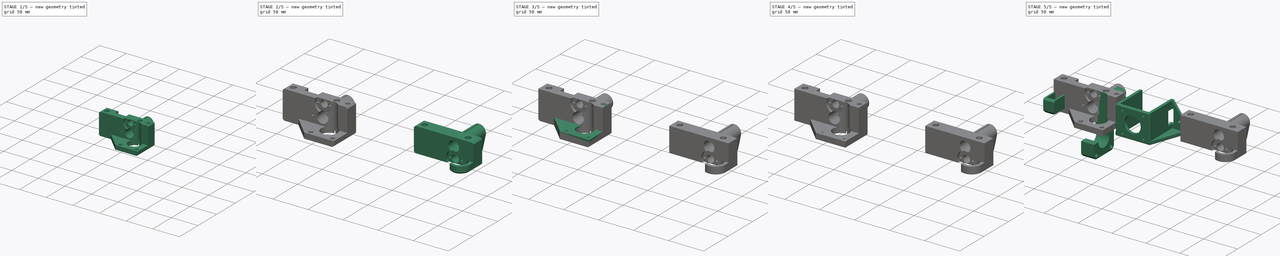
[diagram: build sequence overview — one tinted view per stage of 5, left to right]
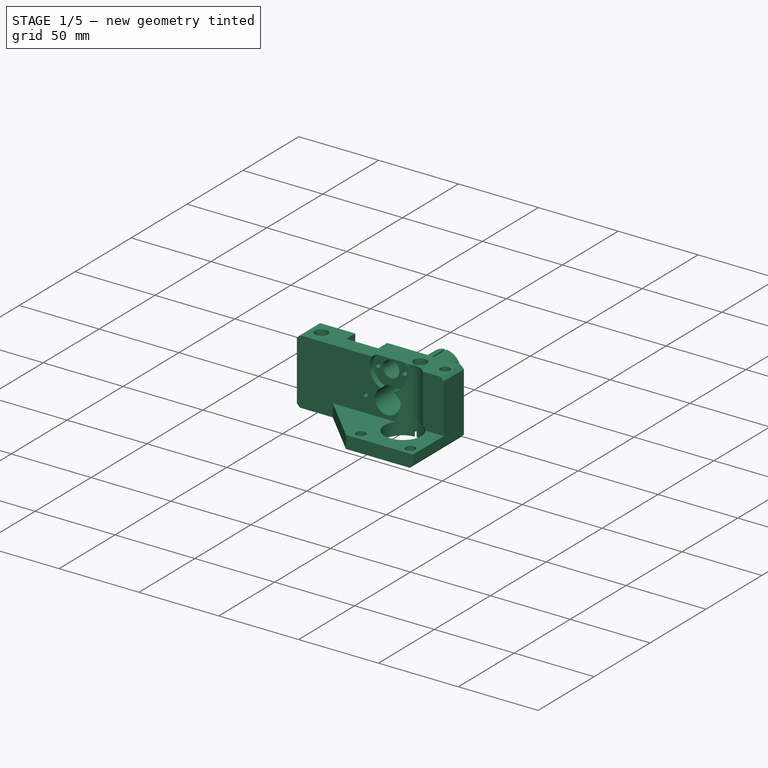
[diagram: stage 1 of 5 — iso view after this stage's code; geometry added in this stage tinted green]
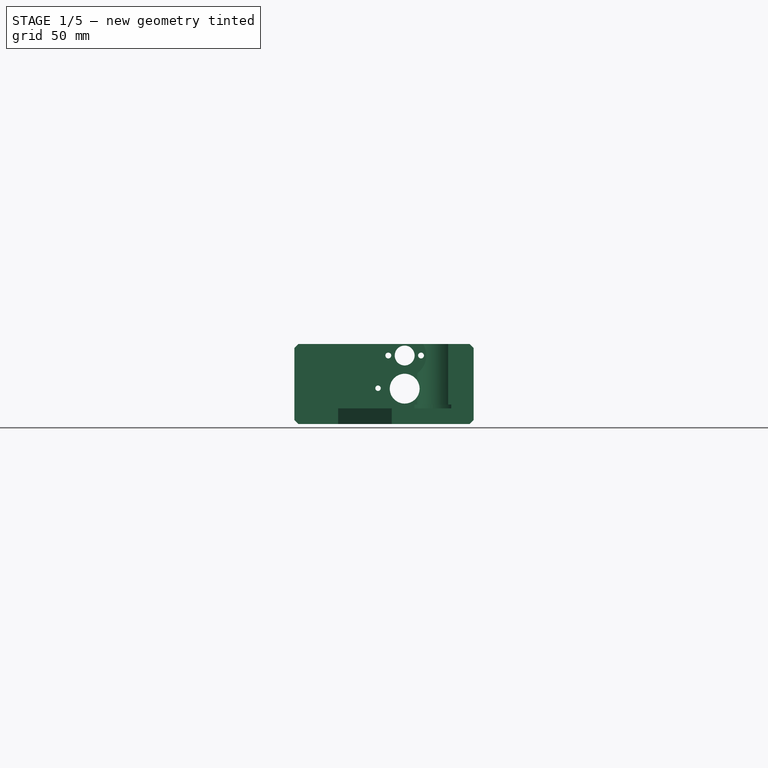
[diagram: stage 1 of 5 — front view after this stage's code; geometry added in this stage tinted green]
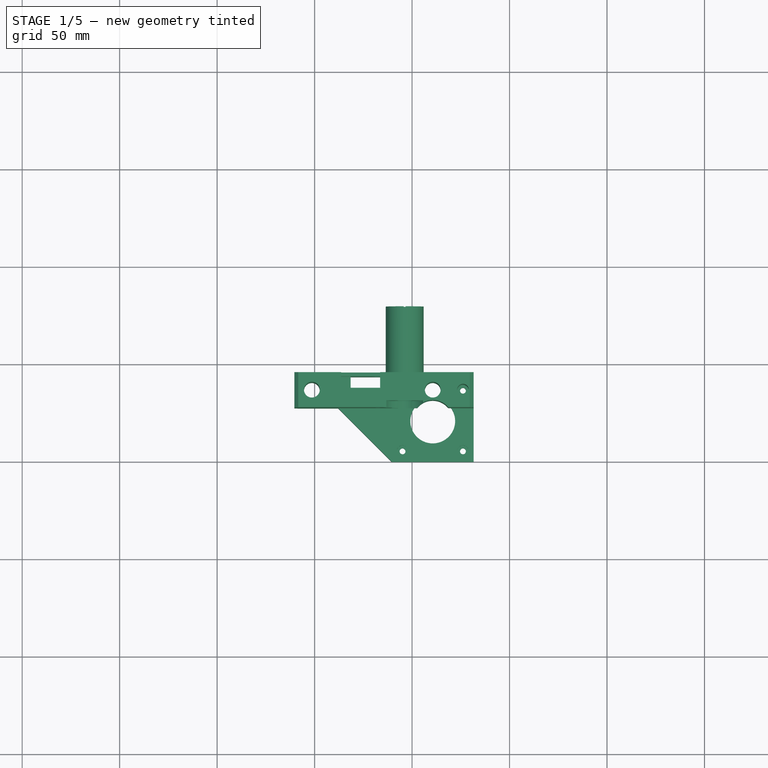
[diagram: stage 1 of 5 — top view after this stage's code; geometry added in this stage tinted green]
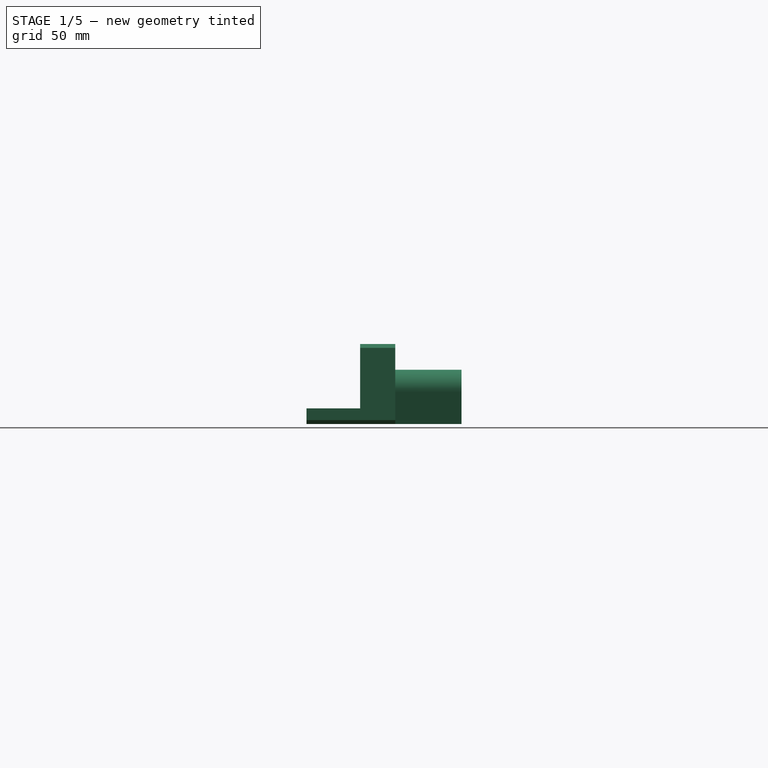
[diagram: stage 1 of 5 — right view after this stage's code; geometry added in this stage tinted green]
FCSTD DOCUMENT  (FreeCAD 0.16R6603 (Git))
Label: h-horizontal-husillos
License: All rights reserved
LicenseURL: http://en.wikipedia.org/wiki/All_rights_reserved
objects: Sketcher::SketchObject×17, PartDesign::Pocket×12, Part::Feature×10, PartDesign::Pad×5, PartDesign::Chamfer×4, Part::FeaturePython×4, Part::Extrusion×2, Part::MultiFuse×2, App::DocumentObjectGroup×2, PartDesign::Groove×1, Part::Cut×1
note: 76 computed .brp shape members not serialized (recipe doc carries the construction recipe); baked Part::Feature solids carry a one-line shape summary decoded from their .brp

FEATURE [Part::Feature] Pocket007001  label="Pocket008"
  shape: bbox 92 x 85.5 x 46 mm, 132 faces (baked)
FEATURE [App::DocumentObjectGroup] Grupo  label="Xmotor"
  Group = -> [Part__Feature002,Facebinder,Fusion,Pocket,Pocket001,Pad,Fusion001,Pocket004,Pocket005,Pocket006,Pocket007,Pocket007001]
FEATURE [PartDesign::Chamfer] Chamfer003
  Base = -> Pocket007001 [Edge70,Edge38,Edge76,Edge37]
  Size = 2
FEATURE [Sketcher::SketchObject] Sketch012
  Placement = pos=(-2.4e-11,85.5,0) rot=(0,0.707107,0.707107;3.14159rad)
  Support = -> Chamfer003 [Face6]
  sketch-geometry (4):
    g0: LineSegment StartX=20.5566 StartY=29.1063 StartZ=0 EndX=91.3385 EndY=29.1063 EndZ=0
    g1: LineSegment StartX=91.3385 StartY=29.1063 StartZ=0 EndX=91.3385 EndY=-15.0078 EndZ=0
    g2: LineSegment StartX=91.3385 StartY=-15.0078 StartZ=0 EndX=20.5566 EndY=-15.0078 EndZ=0
    g3: LineSegment StartX=20.5566 StartY=-15.0078 StartZ=0 EndX=20.5566 EndY=29.1063 EndZ=0
  constraints (8):
    c: Coincident(g0,g1)
    c: Coincident(g1,g2)
    c: Coincident(g2,g3)
    c: Coincident(g3,g0)
    c: Horizontal(g0)
    c: Horizontal(g2)
    c: Vertical(g1)
    c: Vertical(g3)
FEATURE [PartDesign::Pocket] Pocket007003
  Length = 6
  Sketch = -> Sketch012
  Type = 0
FEATURE [Sketcher::SketchObject] Sketch013
  ExternalGeometry = -> [Pocket007003]
  Placement = pos=(-2.2e-11,79.5,0) rot=(0,0.707107,0.707107;3.14159rad)
  Support = -> Pocket007003 [Face4]
  sketch-geometry (8):
    g0: ArcOfCircle CenterX=53.7989 CenterY=12.108 CenterZ=0 NormalX=0 NormalY=0 NormalZ=1 Radius=9.7 StartAngle=4.13132 EndAngle=5.29346
    g1: LineSegment StartX=67.1154 StartY=4 StartZ=0 EndX=144.101 EndY=4 EndZ=0
    g2: LineSegment StartX=144.101 StartY=4 StartZ=0 EndX=144.101 EndY=-24.9121 EndZ=0
    g3: LineSegment StartX=144.101 StartY=-24.9121 StartZ=0 EndX=10.725 EndY=-24.9121 EndZ=0
    g4: LineSegment StartX=10.725 StartY=-24.9121 StartZ=0 EndX=10.725 EndY=6.3612 EndZ=0
    g5: LineSegment StartX=10.725 StartY=6.3612 StartZ=0 EndX=43.6628 EndY=4 EndZ=0
    g6: LineSegment StartX=43.6628 StartY=4 StartZ=0 EndX=48.4744 EndY=4 EndZ=0
    g7: LineSegment StartX=59.1234 StartY=4 StartZ=0 EndX=67.1154 EndY=4 EndZ=0
  constraints (16):
    c: Coincident(g0,g-3)
    c: Coincident(g0,g-4)
    c: Coincident(g-6,g1)
    c: Horizontal(g1)
    c: Coincident(g1,g2)
    c: Vertical(g2)
    c: Coincident(g2,g3)
    c: Horizontal(g3)
    c: Coincident(g3,g4)
    c: Vertical(g4)
    c: Coincident(g4,g5)
    c: Coincident(g5,g-7)
    c: Coincident(g6,g5)
    c: Coincident(g6,g0)
    c: Coincident(g7,g0)
    c: Coincident(g7,g1)
FEATURE [PartDesign::Pocket] Pocket007004
  Length = 0
  Sketch = -> Sketch013
  Type = 3
  UpToFace = -> Pocket007003 [Face8]
FEATURE [Sketcher::SketchObject] Sketch014
  ExternalGeometry = -> [Pocket007004]
  Placement = pos=(-2.2e-11,79.5,0) rot=(0,0.707107,0.707107;3.14159rad)
  Support = -> Pocket007004 [Face101]
  sketch-geometry (4):
    g0: ArcOfCircle CenterX=53.7989 CenterY=12.108 CenterZ=0 NormalX=0 NormalY=0 NormalZ=1 Radius=7.65 StartAngle=6.21778 EndAngle=6.34859
    g1: ArcOfCircle CenterX=53.7989 CenterY=12.108 CenterZ=0 NormalX=0 NormalY=0 NormalZ=1 Radius=9.7 StartAngle=6.23162 EndAngle=6.33475
    g2: LineSegment StartX=61.4325 StartY=12.608 StartZ=0 EndX=63.486 EndY=12.608 EndZ=0
    g3: LineSegment StartX=61.4325 StartY=11.608 StartZ=0 EndX=63.486 EndY=11.608 EndZ=0
  constraints (15):
    c: Coincident(g0,g-6)
    c: Coincident(g1,g-4)
    c: Coincident(g1,g-5)
    c: Coincident(g0,g1)
    c: Coincident(g0,g-6)
    c: Coincident(g0,g-5)
    c: Coincident(g0,g-4)
    c: Coincident(g0,g-3)
    c: Coincident(g0,g-3)
    c: Coincident(g2,g0)
    c: Horizontal(g2)
    c: Coincident(g3,g1)
    c: Horizontal(g3)
    c: Coincident(g1,g2)
    c: Coincident(g0,g3)
FEATURE [PartDesign::Pad] Pad001002
  Length = 10
  Length2 = 100
  Reversed = true
  Sketch = -> Sketch014
  Type = 3
  UpToFace = -> Pocket007004 [Face7]
FEATURE [Sketcher::SketchObject] Sketch015
  ExternalGeometry = -> [Pad001002]
  Placement = pos=(-2.2e-11,79.5,0) rot=(0,0.707107,0.707107;3.14159rad)
  Support = -> Pad001002 [Face99]
  sketch-geometry (4):
    g0: LineSegment StartX=53.2974 StartY=26.5079 StartZ=0 EndX=54.2974 EndY=26.5079 EndZ=0
    g1: LineSegment StartX=54.2974 StartY=26.5079 StartZ=0 EndX=54.2974 EndY=12.1275 EndZ=0
    g2: LineSegment StartX=54.2974 StartY=12.1275 StartZ=0 EndX=53.2974 EndY=12.1275 EndZ=0
    g3: LineSegment StartX=53.2974 StartY=12.1275 StartZ=0 EndX=53.2974 EndY=26.5079 EndZ=0
  constraints (9):
    c: Coincident(g0,g1)
    c: Coincident(g1,g2)
    c: Coincident(g2,g3)
    c: Coincident(g3,g0)
    c: Horizontal(g0)
    c: Horizontal(g2)
    c: Vertical(g1)
    c: Vertical(g3)
    c: Distance(g0) = 1
FEATURE [PartDesign::Pocket] Pocket007005
  Length = 0
  Sketch = -> Sketch015
  Type = 3
  UpToFace = -> Pad001002 [Face7]
FEATURE [Sketcher::SketchObject] Sketch016
  ExternalGeometry = -> [Pocket007005]
  Placement = pos=(-2.2e-11,79.5,0) rot=(0,0.707107,0.707107;3.14159rad)
  Support = -> Pocket007005 [Face101]
  sketch-geometry (7):
    g0: ArcOfCircle CenterX=53.7989 CenterY=12.108 CenterZ=0 NormalX=0 NormalY=0 NormalZ=1 Radius=7.65 StartAngle=3.41356 EndAngle=6.01122
    g1: LineSegment StartX=61.1677 StartY=10.053 StartZ=0 EndX=63.2787 EndY=10.053 EndZ=0
    g2: LineSegment StartX=46.43 StartY=10.053 StartZ=0 EndX=44.319 EndY=10.053 EndZ=0
    g3: LineSegment StartX=63.2787 StartY=10.053 StartZ=0 EndX=59.7989 EndY=-6 EndZ=0
    g4: LineSegment StartX=59.7989 StartY=-6 StartZ=0 EndX=47.7989 EndY=-6 EndZ=0
    g5: LineSegment StartX=47.7989 StartY=-6 StartZ=0 EndX=44.319 EndY=10.053 EndZ=0
    g6: LineSegment [constr] StartX=46.43 StartY=10.053 StartZ=0 EndX=61.1677 EndY=10.053 EndZ=0
  constraints (20):
    c: Coincident(g0,g-6)
    c: PointOnObject(g0,g-3)
    c: Horizontal(g1)
    c: Coincident(g0,g1)
    c: Horizontal(g2)
    c: Coincident(g0,g2)
    c: PointOnObject(g2,g-6)
    c: Coincident(g1,g3)
    c: PointOnObject(g3,g-7)
    c: Coincident(g3,g4)
    c: PointOnObject(g4,g-7)
    c: Coincident(g4,g5)
    c: Coincident(g5,g2)
    c: Equal(g3,g5)
    c: PointOnObject(g1,g-9)
    c: Distance(g4,g3) = 12
    c: Tangent(g-5,g3)
    c: Coincident(g6,g0)
    c: Coincident(g6,g0)
    c: Horizontal(g6)
FEATURE [PartDesign::Pad] Pad001003
  Length = 10
  Length2 = 100
  Reversed = true
  Sketch = -> Sketch016
  Type = 3
  UpToFace = -> Pocket007005 [Face2]
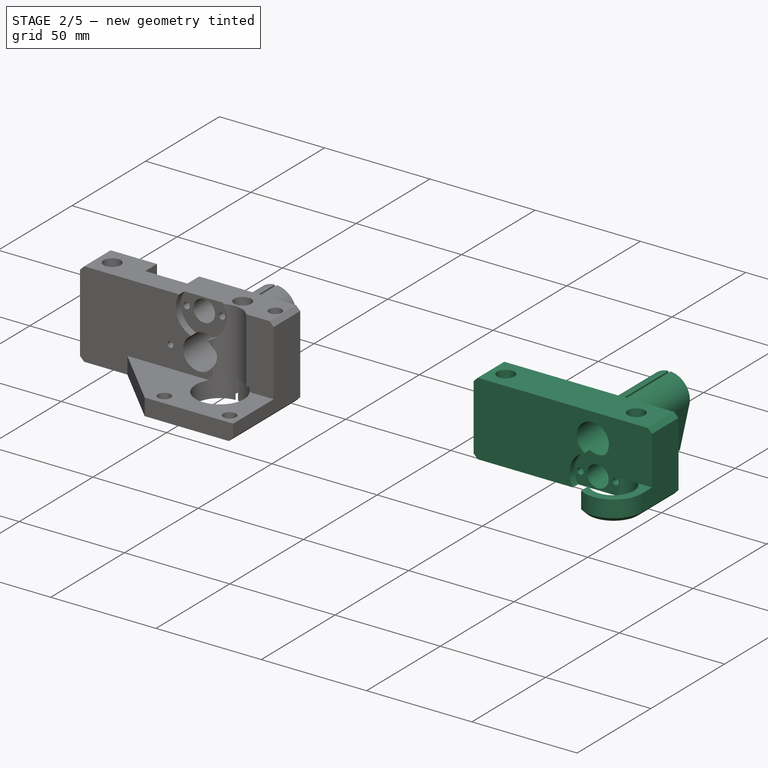
[diagram: stage 2 of 5 — iso view after this stage's code; geometry added in this stage tinted green]
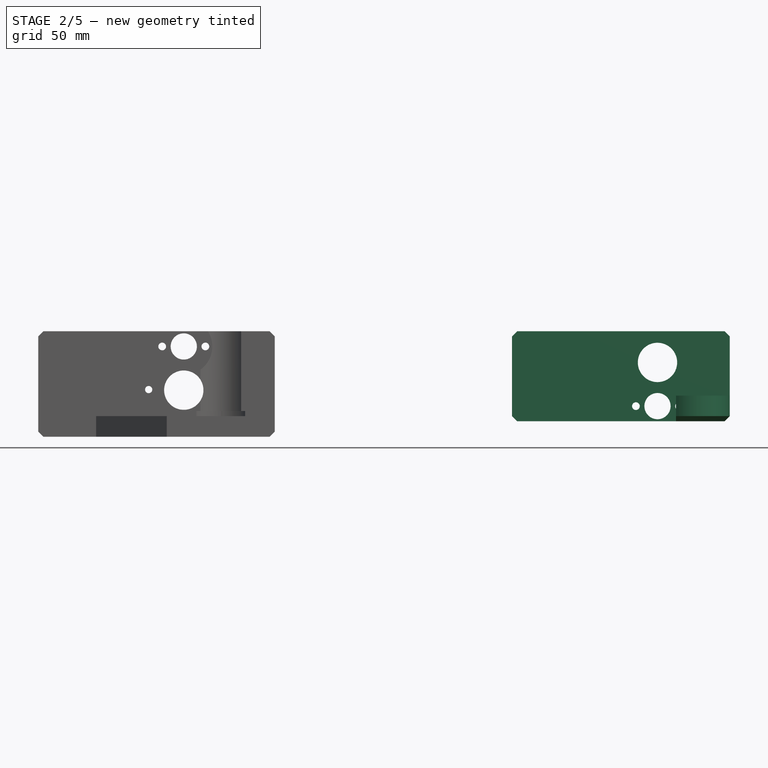
[diagram: stage 2 of 5 — front view after this stage's code; geometry added in this stage tinted green]
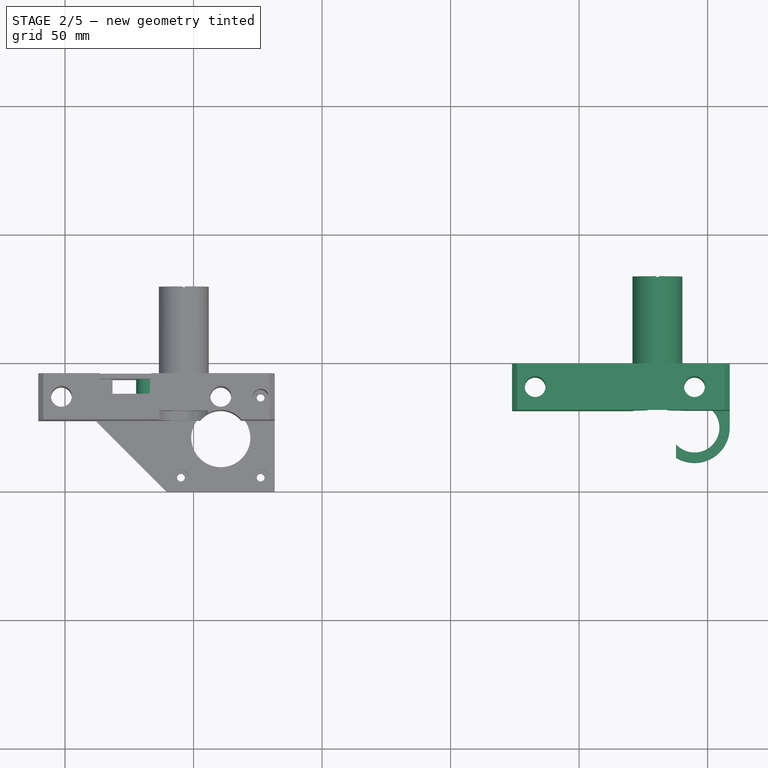
[diagram: stage 2 of 5 — top view after this stage's code; geometry added in this stage tinted green]
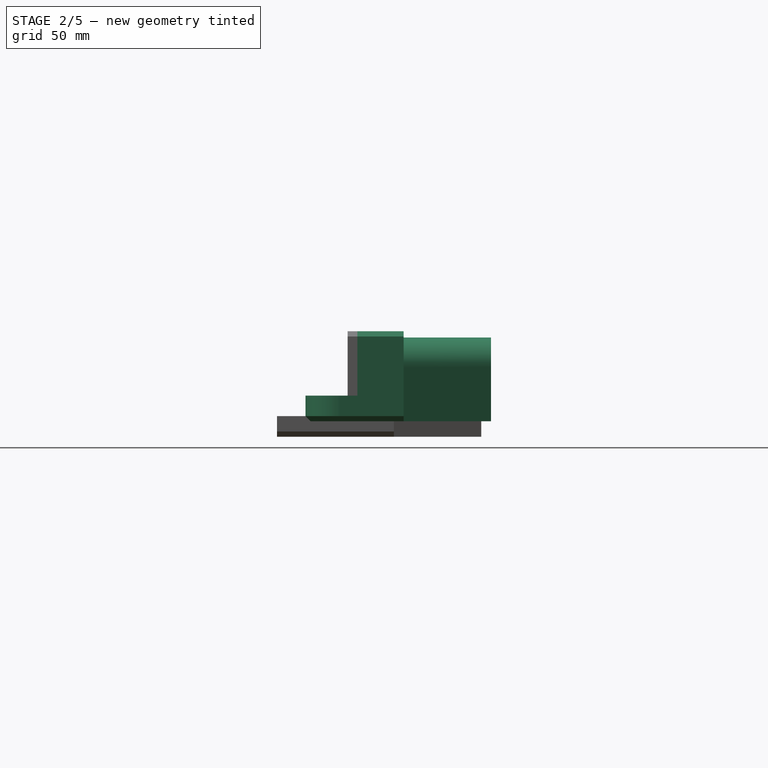
[diagram: stage 2 of 5 — right view after this stage's code; geometry added in this stage tinted green]
FEATURE [Part::Feature] Pad001001  label="Pad002"
  shape: bbox 84.7 x 38.2 x 35 mm, 104 faces (baked)
FEATURE [PartDesign::Chamfer] Chamfer004
  Base = -> Pad001001 [Edge44,Edge118,Edge35,Edge37]
  Size = 2
FEATURE [Part::Feature] Cut001
  Placement = pos=(-112,130,0) rot=(0,0,1;0rad)
  shape: bbox 70.64 x 68.54 x 3 mm, 37 faces (baked)
FEATURE [Part::FeaturePython] Clone  label="Clone of Cut001"  # Draft clone (typed FeaturePython)
  Objects = -> [Cut001]
  Placement = pos=(-176.5,155,-8) rot=(0,0,1;0rad)
  Scale = (0.3,0.3,1)
FEATURE [Sketcher::SketchObject] Sketch011
  Placement = pos=(0,89.2831,-1.81509e-05) rot=(0,0.707107,0.707107;3.14159rad)
  Support = -> Part__Feature003 [Face6]
  sketch-geometry (4):
    g0: LineSegment StartX=-112.139 StartY=-6.73825 StartZ=0 EndX=-144.055 EndY=-6.73825 EndZ=0
    g1: LineSegment StartX=-144.055 StartY=-6.73825 StartZ=0 EndX=-144.055 EndY=34.473 EndZ=0
    g2: LineSegment StartX=-144.055 StartY=34.473 StartZ=0 EndX=-112.139 EndY=34.473 EndZ=0
    g3: LineSegment StartX=-112.139 StartY=34.473 StartZ=0 EndX=-112.139 EndY=-6.73825 EndZ=0
  constraints (8):
    c: Coincident(g0,g1)
    c: Coincident(g1,g2)
    c: Coincident(g2,g3)
    c: Coincident(g3,g0)
    c: Horizontal(g0)
    c: Horizontal(g2)
    c: Vertical(g1)
    c: Vertical(g3)
FEATURE [PartDesign::Pocket] Pocket007002
  Length = 6
  Sketch = -> Sketch011
  Type = 0
FEATURE [Sketcher::SketchObject] Sketch018
  ExternalGeometry = -> [Pad001003]
  Placement = pos=(0,45.5,0) rot=(0,0.707107,0.707107;3.14159rad)
  Support = -> Pad001003 [Face7]
  sketch-geometry (4):
    g0: ArcOfCircle CenterX=67.4276 CenterY=12.3319 CenterZ=0 NormalX=0 NormalY=0 NormalZ=1 Radius=2.99086 StartAngle=4.36188 EndAngle=8.20449
    g1: ArcOfCircle CenterX=67.5648 CenterY=12.3067 CenterZ=0 NormalX=0 NormalY=0 NormalZ=1 Radius=4.77461 StartAngle=4.18328 EndAngle=8.40341
    g2: LineSegment StartX=65.0715 StartY=16.3786 StartZ=0 EndX=66.4006 EndY=15.1409 EndZ=0
    g3: LineSegment StartX=66.4006 StartY=9.52292 StartZ=0 EndX=65.1548 EndY=8.18497 EndZ=0
  constraints (7):
    c: Coincident(g0,g-5)
    c: Coincident(g0,g-4)
    c: Coincident(g2,g1)
    c: Coincident(g2,g0)
    c: Coincident(g3,g0)
    c: Coincident(g3,g1)
    c: Perpendicular(g3,g2)
FEATURE [PartDesign::Pad] Pad001004
  Length = 10
  Length2 = 100
  Reversed = true
  Sketch = -> Sketch018
  Type = 0
FEATURE [Sketcher::SketchObject] Sketch019
  ExternalGeometry = -> [Pad001004]
  Placement = pos=(0,0,-6) rot=(1,0,0;3.14159rad)
  Support = -> Pad001004 [Face40]
  sketch-geometry (7):
    g0: LineSegment StartX=-56.0489 StartY=-43 StartZ=0 EndX=-51.5489 EndY=-43 EndZ=0
    g1: LineSegment StartX=-51.5489 StartY=-43 StartZ=0 EndX=-51.5489 EndY=-40.5 EndZ=0
    g2: LineSegment StartX=-51.5489 StartY=-40.5 StartZ=0 EndX=-56.0489 EndY=-40.5 EndZ=0
    g3: LineSegment StartX=-56.0489 StartY=-40.5 StartZ=0 EndX=-56.0489 EndY=-43 EndZ=0
    g4: LineSegment [constr] StartX=-51.5489 StartY=-43 StartZ=0 EndX=-47.7989 EndY=-45.5 EndZ=0
    g5: LineSegment [constr] StartX=-56.0489 StartY=-43 StartZ=0 EndX=-59.7989 EndY=-45.5 EndZ=0
    g6: LineSegment [constr] StartX=-59.7989 StartY=-45.5 StartZ=0 EndX=-47.7989 EndY=-45.5 EndZ=0
  constraints (18):
    c: Coincident(g0,g1)
    c: Coincident(g1,g2)
    c: Coincident(g2,g3)
    c: Coincident(g3,g0)
    c: Horizontal(g0)
    c: Horizontal(g2)
    c: Vertical(g1)
    c: Vertical(g3)
    c: Coincident(g4,g0)
    c: Coincident(g4,g-3)
    c: Coincident(g5,g0)
    c: Coincident(g5,g-3)
    c: Equal(g5,g4)
    c: Distance(g0) = 4.5
    c: Distance(g3) = 2.5
    c: Distance(g0,g-3) = 2.5
    c: Coincident(g6,g5)
    c: Coincident(g6,g4)
FEATURE [PartDesign::Groove] Groove
  Angle = 360
  Axis = (12,0,0)
  Base = (-59.7989,45.5,-6)
  ReferenceAxis = -> Sketch019 [Axis2]
  Reversed = true
  Sketch = -> Sketch019
FEATURE [Part::Cut] Cut
  Base = -> Groove
  Tool = -> Clone
FEATURE [Part::Feature] Cut002
  shape: bbox 92 x 79.5 x 48 mm, 180 faces (baked)
FEATURE [Part::Feature] Chamfer001  label="CarroX"
  shape: bbox 61 x 81 x 37 mm, 80 faces (baked)
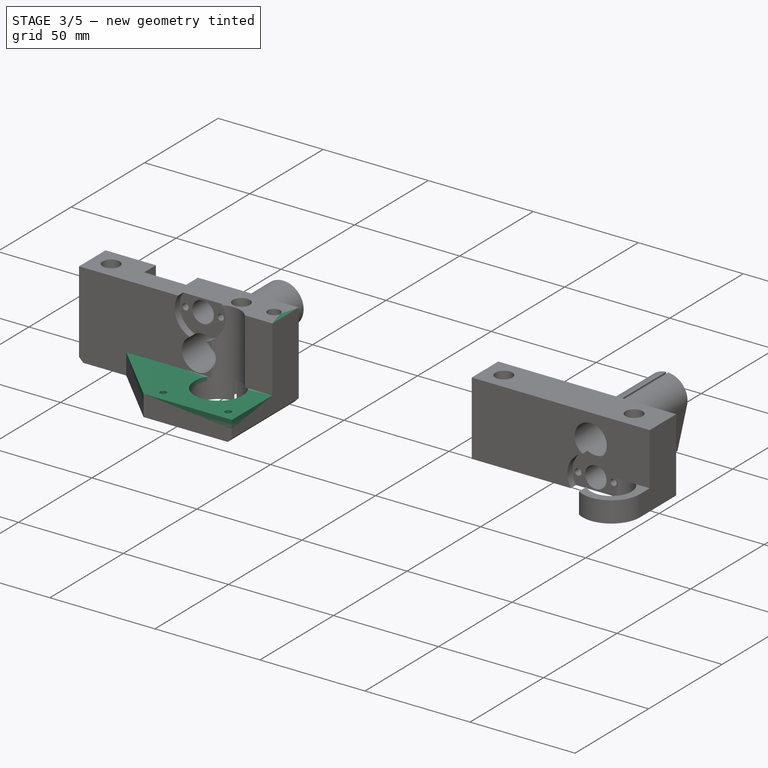
[diagram: stage 3 of 5 — iso view after this stage's code; geometry added in this stage tinted green]
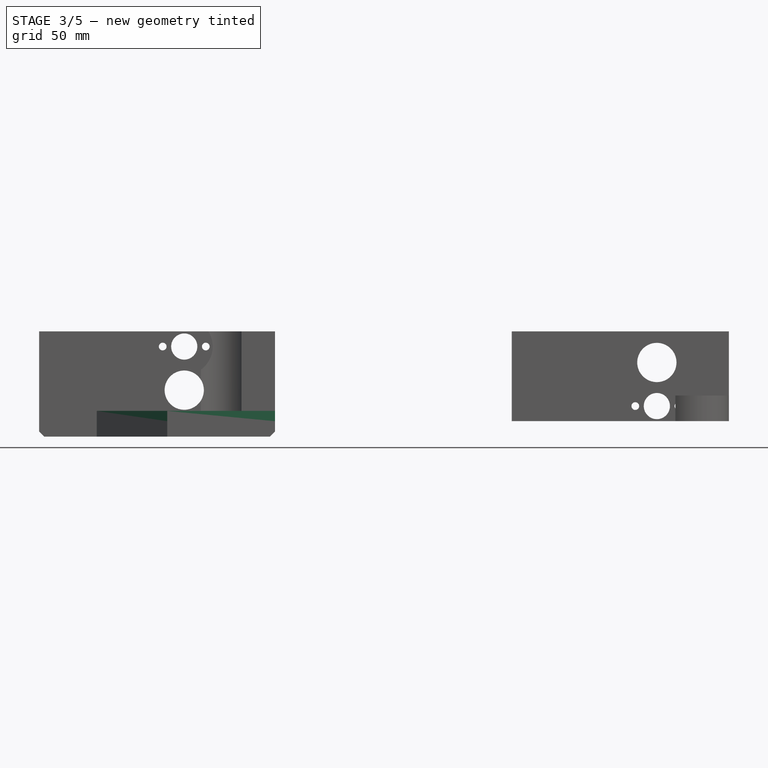
[diagram: stage 3 of 5 — front view after this stage's code; geometry added in this stage tinted green]
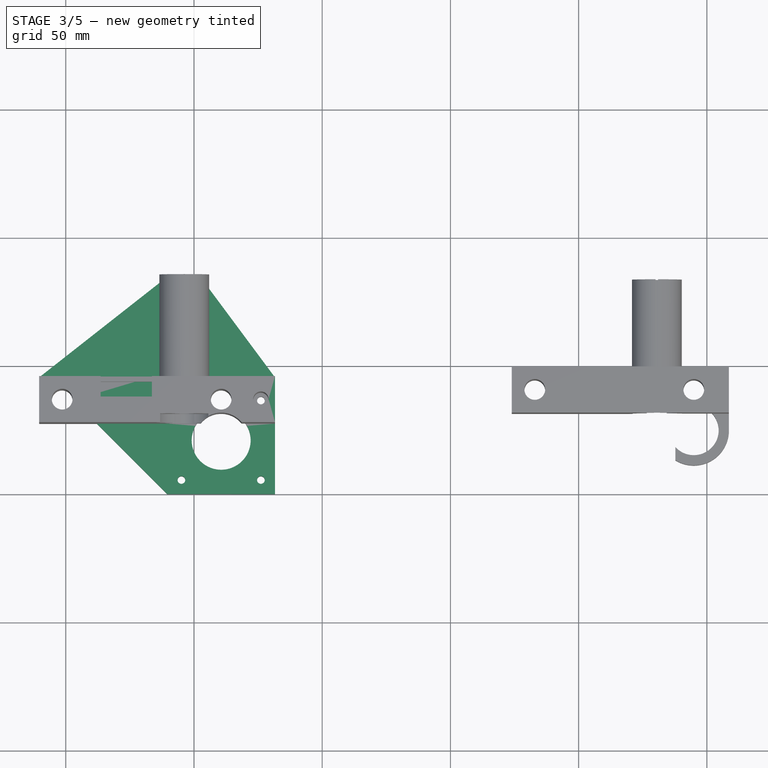
[diagram: stage 3 of 5 — top view after this stage's code; geometry added in this stage tinted green]
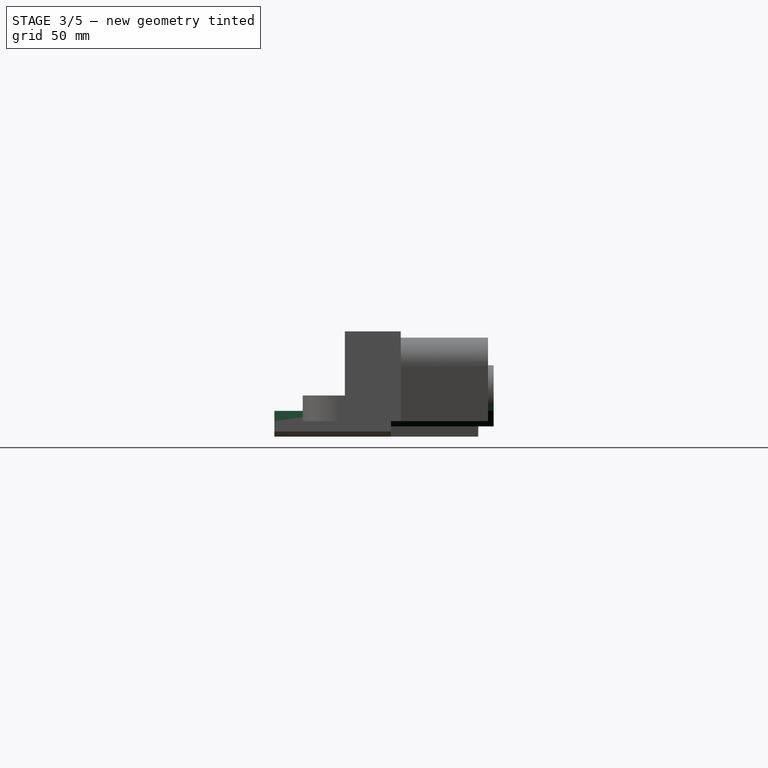
[diagram: stage 3 of 5 — right view after this stage's code; geometry added in this stage tinted green]
FEATURE [Part::Feature] Part__Feature  label="X eje horizontal"
  shape: bbox 84.7 x 38.2 x 35 mm, 122 faces (baked)
FEATURE [Part::Feature] Part__Feature002  label="X eje horizontal002"
  shape: bbox 92 x 85.5 x 40.4 mm, 129 faces (baked)
FEATURE [Part::Feature] Part__Feature003  label="X eje horizontal003"
  shape: bbox 20.94 x 40.8 x 32.59 mm, 14 faces (baked)
FEATURE [PartDesign::Chamfer] Chamfer
  Base = -> Part__Feature002 [Edge181]
  Size = 27.5
FEATURE [Part::FeaturePython] Facebinder  # WARN: FeaturePython — macro-defined, semantics opaque (R4)
  Faces = -> [Chamfer]
FEATURE [Part::Extrusion] Extrude
  Base = -> Facebinder
  Dir = (0,0,-2)
  Solid = true
FEATURE [Part::MultiFuse] Fusion
  Shapes = -> [Chamfer,Extrude]
FEATURE [Sketcher::SketchObject] Sketch
  ExternalGeometry = -> [Fusion]
  Placement = pos=(0,39.5,0) rot=(0,0.707107,0.707107;3.14159rad)
  Support = -> Fusion [Face120]
  sketch-geometry (4):
    g0: LineSegment StartX=86.4006 StartY=35 StartZ=0 EndX=66.4006 EndY=35 EndZ=0
    g1: LineSegment StartX=66.4006 StartY=35 StartZ=0 EndX=66.4006 EndY=19.8 EndZ=0
    g2: LineSegment StartX=66.4006 StartY=19.8 StartZ=0 EndX=86.4006 EndY=19.8 EndZ=0
    g3: LineSegment StartX=86.4006 StartY=19.8 StartZ=0 EndX=86.4006 EndY=35 EndZ=0
  constraints (10):
    c: Coincident(g0,g1)
    c: Coincident(g1,g2)
    c: Coincident(g2,g3)
    c: Coincident(g3,g0)
    c: Horizontal(g0)
    c: Horizontal(g2)
    c: Vertical(g1)
    c: Vertical(g3)
    c: Coincident(g0,g-4)
    c: Coincident(g1,g-3)
FEATURE [PartDesign::Pocket] Pocket
  Length = 2
  Sketch = -> Sketch
  Type = 0
FEATURE [Sketcher::SketchObject] Sketch010
  ExternalGeometry = -> [Part__Feature]
  Placement = pos=(0,33.2832,0) rot=(0,0.707107,0.707107;3.14159rad)
  Support = -> Part__Feature [Face117]
  sketch-geometry (4):
    g0: LineSegment StartX=-97.9001 StartY=15.2 StartZ=0 EndX=-117.9 EndY=15.2 EndZ=0
    g1: LineSegment StartX=-117.9 StartY=15.2 StartZ=0 EndX=-117.9 EndY=0 EndZ=0
    g2: LineSegment StartX=-117.9 StartY=0 StartZ=0 EndX=-97.9001 EndY=0 EndZ=0
    g3: LineSegment StartX=-97.9001 StartY=0 StartZ=0 EndX=-97.9001 EndY=15.2 EndZ=0
  constraints (10):
    c: Coincident(g0,g1)
    c: Coincident(g1,g2)
    c: Coincident(g2,g3)
    c: Coincident(g3,g0)
    c: Horizontal(g0)
    c: Horizontal(g2)
    c: Vertical(g1)
    c: Vertical(g3)
    c: Coincident(g0,g-4)
    c: Coincident(g1,g-3)
FEATURE [PartDesign::Pad] Pad001
  Length = 10
  Length2 = 100
  Sketch = -> Sketch010
  Type = 3
  UpToFace = -> Part__Feature [Face16]
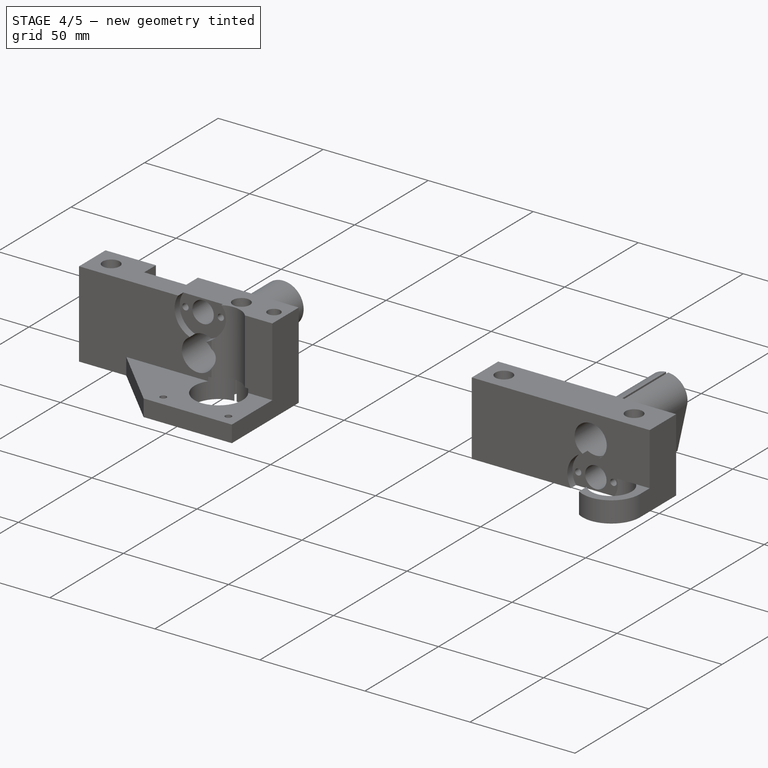
[diagram: stage 4 of 5 — iso view after this stage's code; geometry added in this stage tinted green]
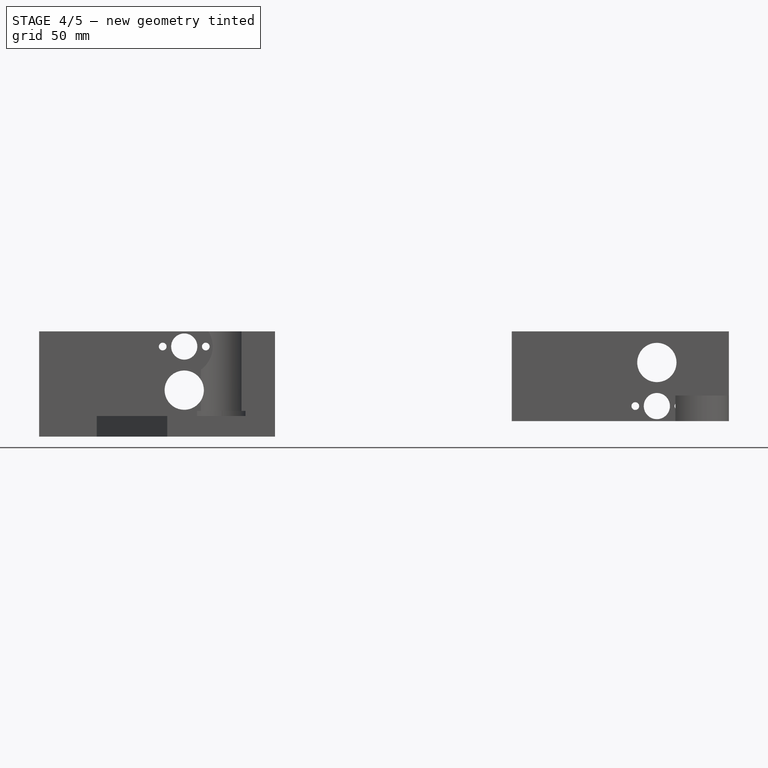
[diagram: stage 4 of 5 — front view after this stage's code; geometry added in this stage tinted green]
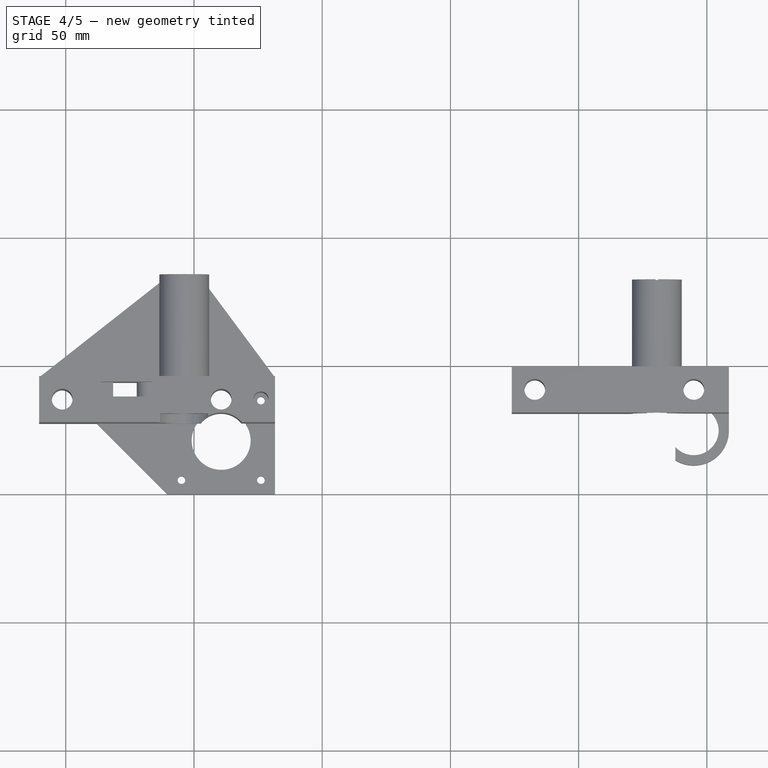
[diagram: stage 4 of 5 — top view after this stage's code; geometry added in this stage tinted green]
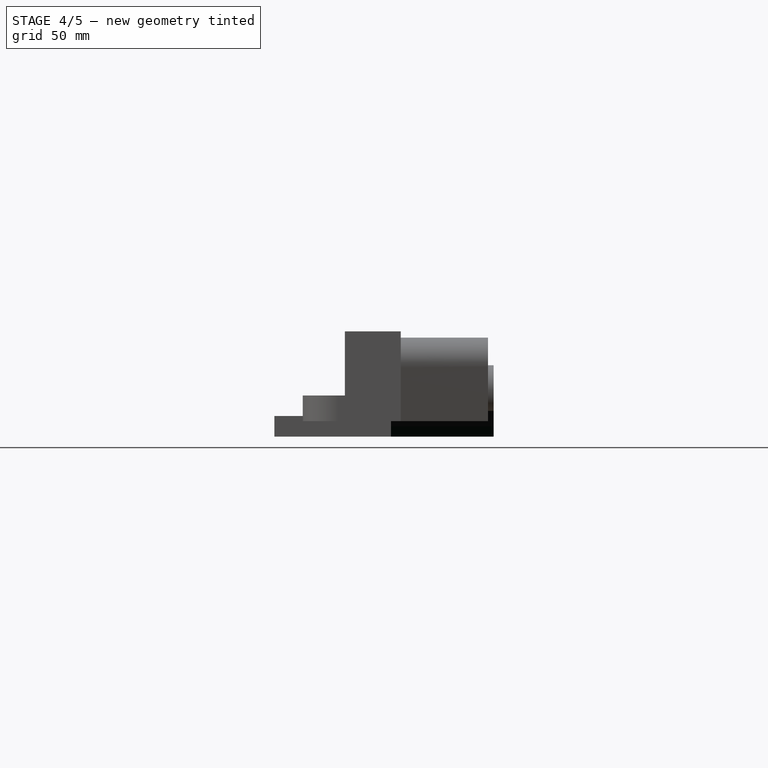
[diagram: stage 4 of 5 — right view after this stage's code; geometry added in this stage tinted green]
FEATURE [Sketcher::SketchObject] Sketch002
  ExternalGeometry = -> [Pocket]
  Placement = pos=(0,0,19.8) rot=(0,0,1;0rad)
  Support = -> Pocket [Face131]
  sketch-geometry (4):
    g0: LineSegment StartX=-86.4006 StartY=37.5 StartZ=0 EndX=-66.4006 EndY=37.5 EndZ=0
    g1: LineSegment StartX=-66.4006 StartY=37.5 StartZ=0 EndX=-66.4006 EndY=43.5 EndZ=0
    g2: LineSegment StartX=-66.4006 StartY=43.5 StartZ=0 EndX=-86.4006 EndY=43.5 EndZ=0
    g3: LineSegment StartX=-86.4006 StartY=43.5 StartZ=0 EndX=-86.4006 EndY=37.5 EndZ=0
  constraints (11):
    c: Coincident(g0,g1)
    c: Coincident(g1,g2)
    c: Coincident(g2,g3)
    c: Coincident(g3,g0)
    c: Horizontal(g0)
    c: Horizontal(g2)
    c: Vertical(g1)
    c: Vertical(g3)
    c: Coincident(g0,g-3)
    c: Coincident(g0,g-3)
    c: Distance(g-4,g2) = 2
FEATURE [PartDesign::Pocket] Pocket001
  Length = 5
  Sketch = -> Sketch002
  Type = 0
FEATURE [Sketcher::SketchObject] Sketch003
  ExternalGeometry = -> [Pocket001]
  Placement = pos=(0,0,19.8) rot=(0,0,1;0rad)
  Support = -> Pocket001 [Face131]
  sketch-geometry (4):
    g0: LineSegment StartX=-66.4006 StartY=45.5 StartZ=0 EndX=-86.4006 EndY=45.5 EndZ=0
    g1: LineSegment StartX=-86.4006 StartY=45.5 StartZ=0 EndX=-86.4006 EndY=43.5 EndZ=0
    g2: LineSegment StartX=-86.4006 StartY=43.5 StartZ=0 EndX=-66.4006 EndY=43.5 EndZ=0
    g3: LineSegment StartX=-66.4006 StartY=43.5 StartZ=0 EndX=-66.4006 EndY=45.5 EndZ=0
  constraints (10):
    c: Coincident(g0,g1)
    c: Coincident(g1,g2)
    c: Coincident(g2,g3)
    c: Coincident(g3,g0)
    c: Horizontal(g0)
    c: Horizontal(g2)
    c: Vertical(g1)
    c: Vertical(g3)
    c: Coincident(g1,g-4)
    c: Coincident(g0,g-3)
FEATURE [PartDesign::Pad] Pad
  Length = 4
  Length2 = 100
  Sketch = -> Sketch003
  Type = 0
FEATURE [Sketcher::SketchObject] Sketch004
  ExternalGeometry = -> [Pad]
  Placement = pos=(0,0,14.8) rot=(0,0,1;0rad)
  Support = -> Pad [Face156]
  sketch-geometry (4):
    g0: LineSegment StartX=-66.4006 StartY=43.5 StartZ=0 EndX=-81.5159 EndY=43.5 EndZ=0
    g1: LineSegment StartX=-81.5159 StartY=43.5 StartZ=0 EndX=-81.5159 EndY=37.5 EndZ=0
    g2: LineSegment StartX=-81.5159 StartY=37.5 StartZ=0 EndX=-66.4006 EndY=37.5 EndZ=0
    g3: LineSegment StartX=-66.4006 StartY=37.5 StartZ=0 EndX=-66.4006 EndY=43.5 EndZ=0
  constraints (10):
    c: Coincident(g0,g1)
    c: Coincident(g1,g2)
    c: Coincident(g2,g3)
    c: Coincident(g3,g0)
    c: Horizontal(g0)
    c: Horizontal(g2)
    c: Vertical(g1)
    c: Vertical(g3)
    c: Coincident(g0,g-4)
    c: PointOnObject(g1,g-3)
FEATURE [PartDesign::Pocket] Pocket002
  Length = 20
  Sketch = -> Sketch004
  Type = 0
FEATURE [App::DocumentObjectGroup] Grupo001
  Group = -> [Part__Feature004,Pocket003,Chamfer002]
FEATURE [Part::Feature] Part__Feature006  label="Y idler"
  shape: bbox 83.9 x 27 x 6 mm, 22 faces (baked)
FEATURE [Part::FeaturePython] Facebinder001  # WARN: FeaturePython — macro-defined, semantics opaque (R4)
  Faces = -> [Pocket002]
FEATURE [Part::Extrusion] Extrude001
  Base = -> Facebinder001
  Dir = (0,0,-4)
  Solid = true
FEATURE [Part::MultiFuse] Fusion001
  Shapes = -> [Extrude001,Pocket002]
FEATURE [Sketcher::SketchObject] Sketch005
  ExternalGeometry = -> [Fusion001]
  Placement = pos=(0,0,4) rot=(0,0,1;0rad)
  Support = -> Fusion001 [Face80]
  sketch-geometry (4):
    g0: LineSegment StartX=-5.89471 StartY=27.5 StartZ=0 EndX=-89.6924 EndY=27.5 EndZ=0
    g1: LineSegment StartX=-89.6924 StartY=27.5 StartZ=0 EndX=-89.6924 EndY=-18.2802 EndZ=0
    g2: LineSegment StartX=-89.6924 StartY=-18.2802 StartZ=0 EndX=-5.89471 EndY=-18.2802 EndZ=0
    g3: LineSegment StartX=-5.89471 StartY=-18.2802 StartZ=0 EndX=-5.89471 EndY=27.5 EndZ=0
  constraints (9):
    c: Coincident(g0,g1)
    c: Coincident(g1,g2)
    c: Coincident(g2,g3)
    c: Coincident(g3,g0)
    c: Horizontal(g0)
    c: Horizontal(g2)
    c: Vertical(g1)
    c: Vertical(g3)
    c: PointOnObject(g-3,g0)
FEATURE [PartDesign::Pocket] Pocket004
  Length = 2
  Sketch = -> Sketch005
  Type = 0
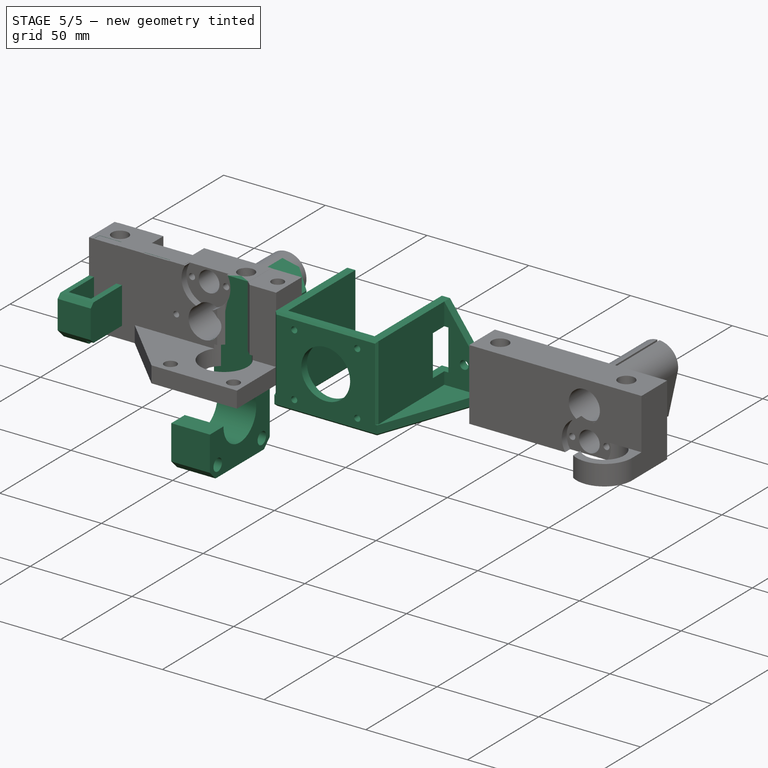
[diagram: stage 5 of 5 — iso view after this stage's code; geometry added in this stage tinted green]
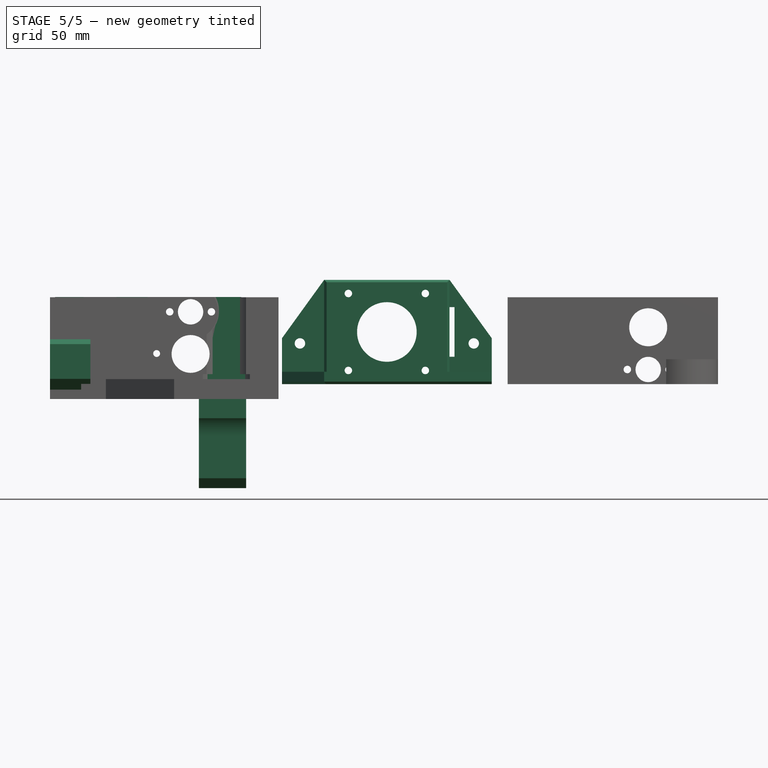
[diagram: stage 5 of 5 — front view after this stage's code; geometry added in this stage tinted green]
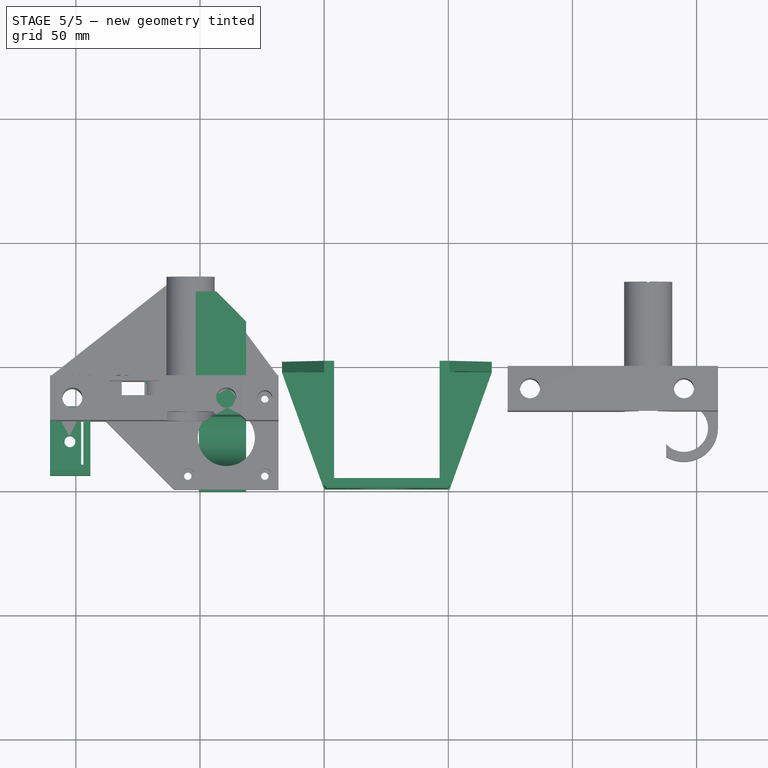
[diagram: stage 5 of 5 — top view after this stage's code; geometry added in this stage tinted green]
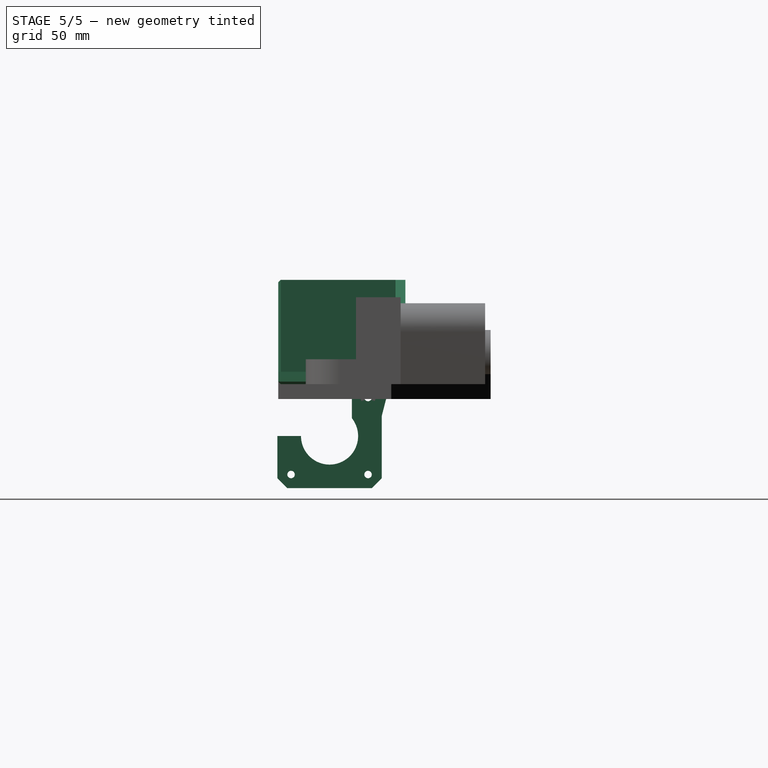
[diagram: stage 5 of 5 — right view after this stage's code; geometry added in this stage tinted green]
FEATURE [Part::Feature] Part__Feature004  label="Y motor"
  shape: bbox 84.5 x 51.2 x 42 mm, 34 faces (baked)
FEATURE [PartDesign::Pocket] Pocket003
  Length = 6
  Sketch = -> Sketch
  Type = 0
FEATURE [PartDesign::Chamfer] Chamfer002
  Base = -> Pocket003 [Edge34,Edge32,Edge39,Edge37,Edge38,Edge52,Edge19,Edge24]
  Size = 1
FEATURE [Sketcher::SketchObject] Sketch006
  ExternalGeometry = -> [Pocket004]
  Placement = pos=(0,0,2) rot=(0,0,1;0rad)
  Support = -> Pocket004 [Face80]
  sketch-geometry (2):
    g0: Circle CenterX=-54.9009 CenterY=5.5 CenterZ=0 NormalX=0 NormalY=0 NormalZ=1 Radius=3
    g1: Circle CenterX=-23.9009 CenterY=5.5 CenterZ=0 NormalX=0 NormalY=0 NormalZ=1 Radius=3
  constraints (4):
    c: Coincident(g0,g-3)
    c: Coincident(g1,g-4)
    c: Radius(g1) = 3
    c: Equal(g1,g0)
FEATURE [PartDesign::Pocket] Pocket005
  Length = 4
  Sketch = -> Sketch006
  Type = 0
FEATURE [Part::FeaturePython] Clone037  label="Clone of Pocket037"  # WARN: FeaturePython — macro-defined, semantics opaque (R4)
  Placement = pos=(-24.4977,-207.115,274.5) rot=(-0.57735,-0.57735,-0.57735;2.0944rad)
  Scale = (1,1,1)
FEATURE [Sketcher::SketchObject] Sketch008
  Placement = pos=(0,45.5,0) rot=(0,0.707107,0.707107;3.14159rad)
  Support = -> Pocket005 [Face85]
  sketch-geometry (1):
    g0: Circle CenterX=67.4539 CenterY=12.3319 CenterZ=0 NormalX=0 NormalY=0 NormalZ=1 Radius=3
  constraints (1):
    c: Radius(g0) = 3
FEATURE [PartDesign::Pocket] Pocket006
  Length = 14
  Sketch = -> Sketch008
  Type = 0
FEATURE [Sketcher::SketchObject] Sketch009
  ExternalGeometry = -> [Pocket006]
  Placement = pos=(0,45.5,0) rot=(0,0.707107,0.707107;3.14159rad)
  Support = -> Pocket006 [Face85]
  sketch-geometry (1):
    g0: Circle CenterX=67.4539 CenterY=12.3319 CenterZ=0 NormalX=0 NormalY=0 NormalZ=1 Radius=1.4
  constraints (2):
    c: Coincident(g0,g-3)
    c: Radius(g0) = 1.4
FEATURE [PartDesign::Pocket] Pocket007
  Length = 5
  Sketch = -> Sketch009
  Type = 1
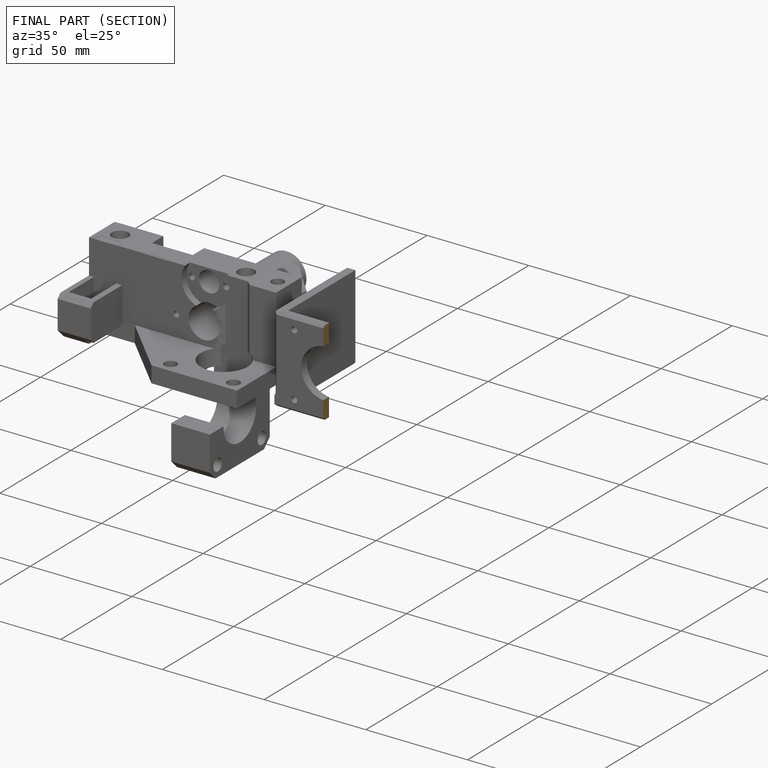
[diagram: finished part — half-section view (interior)]
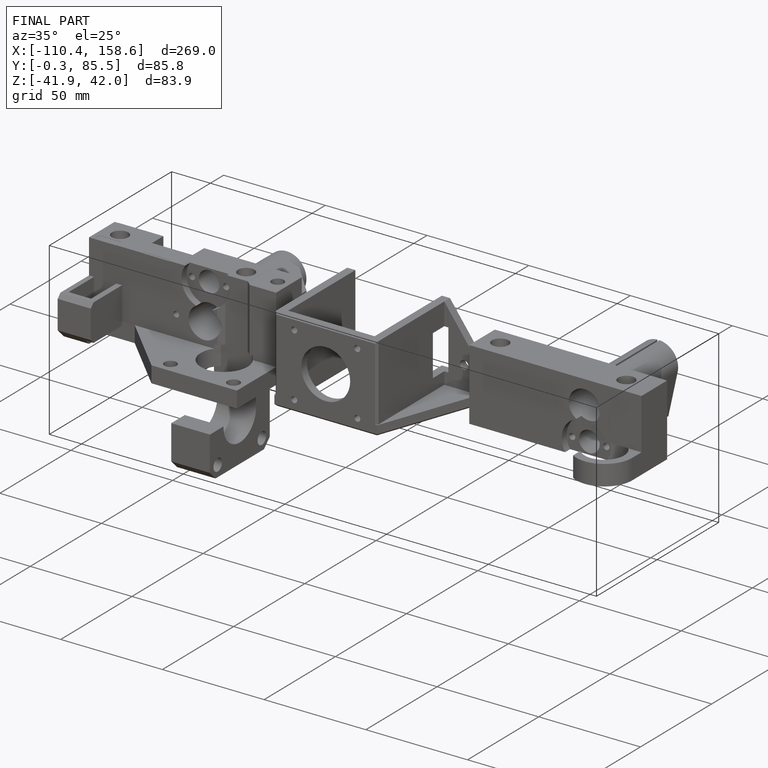
[diagram: finished part — iso view with bounding-box wireframe]
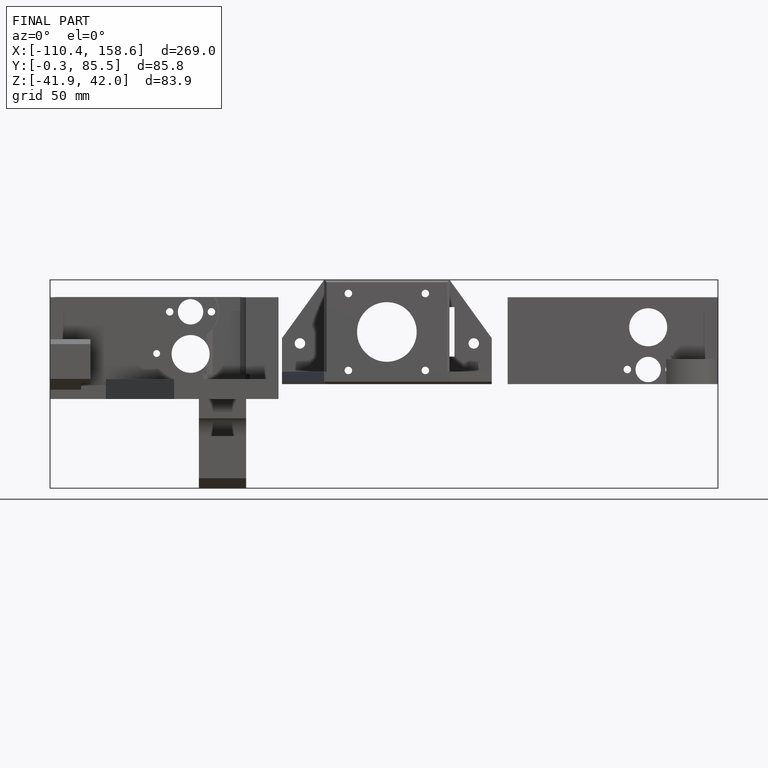
[diagram: finished part — front view with bounding-box wireframe]
